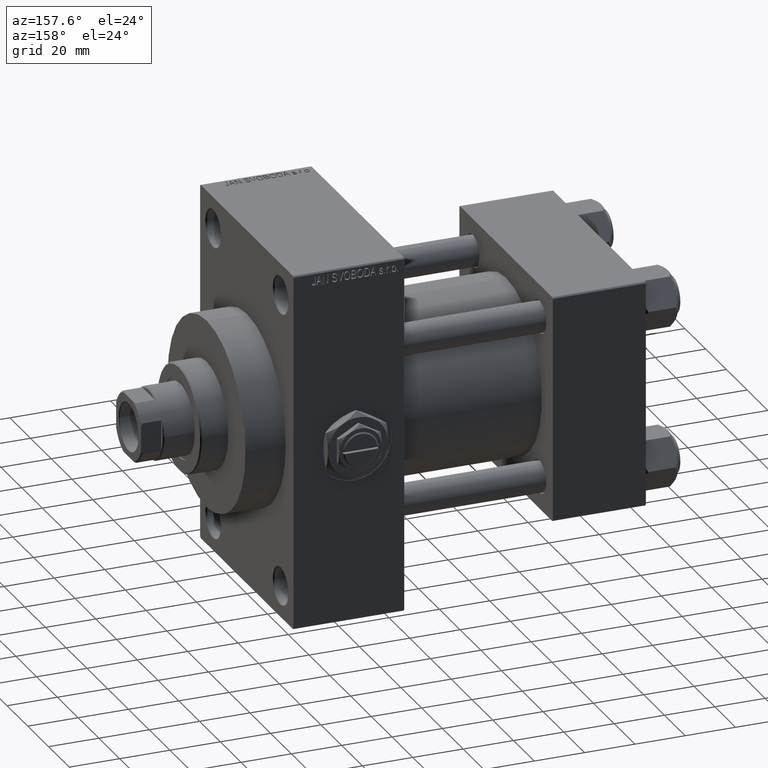
[diagram: clean part render]
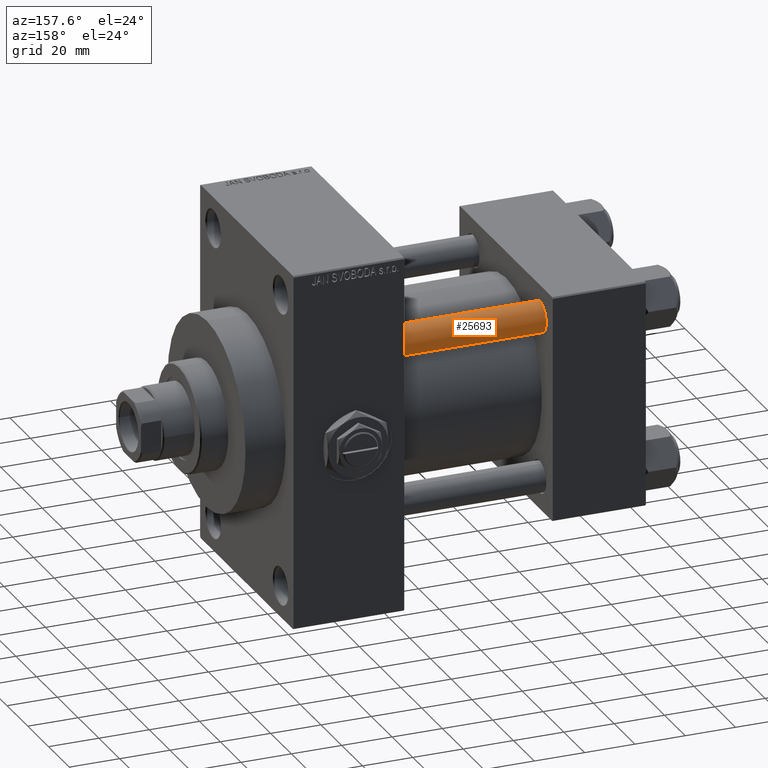
[diagram: same view with one face highlighted and labeled with its STEP entity id]
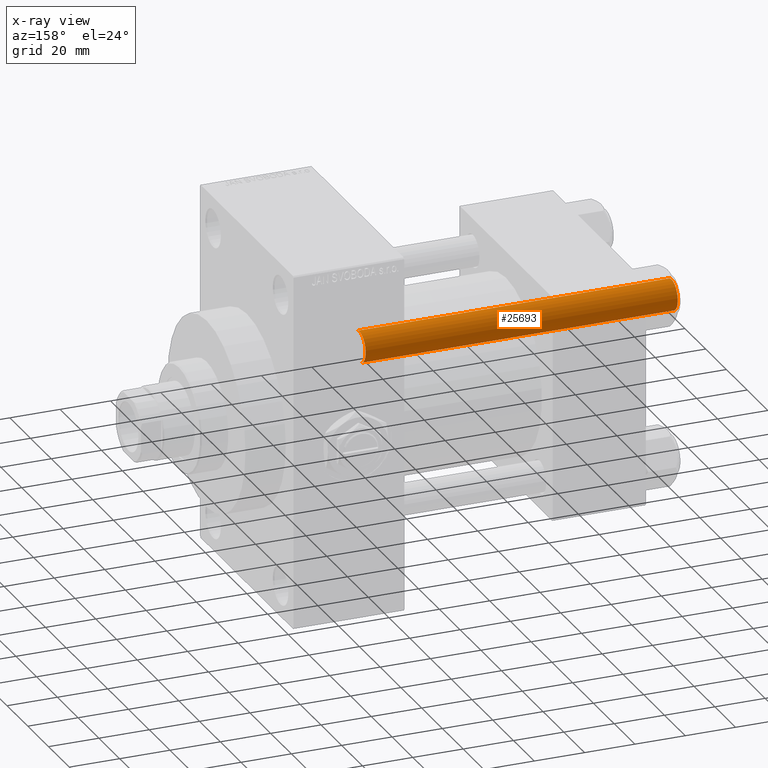
[diagram: x-ray of the same camera — body ghosted, the highlighted face saturated]
A machine part, auxiliary view. The second image highlights one B-rep face of the part: STEP entity #25693.
The next image is the same camera in x-ray: the body ghosted, the highlighted face saturated — about 0% of this face is hidden behind the body in this view.
In plain terms, the highlighted cylindrical surface (edge-blend (fillet) strip) has radius 6 mm, axis along (-1, -0, 0).
Its self-contained STEP definition (entity closure, byte-faithful):
#333 = CARTESIAN_POINT ( 'NONE',  ( 0.000000000000000000, 0.000000000000000000, 125.0000000000000000 ) ) ;
#1249 = VERTEX_POINT ( 'NONE', #16820 ) ;
#2919 = EDGE_CURVE ( 'NONE', #32861, #1249, #44794, .T. ) ;
#7286 = AXIS2_PLACEMENT_3D ( 'NONE', #47069, #21551, #17102 ) ;
#8773 = ORIENTED_EDGE ( 'NONE', *, *, #2919, .F. ) ;
#9768 = CIRCLE ( 'NONE', #36678, 6.000000000000000888 ) ;
#11502 = DIRECTION ( 'NONE',  ( -0.000000000000000000, -0.000000000000000000, -1.000000000000000000 ) ) ;
#12457 = CARTESIAN_POINT ( 'NONE',  ( 6.000000000000000888, 7.347880794884120722E-16, 0.4999999999999865663 ) ) ;
#13547 = EDGE_CURVE ( 'NONE', #45337, #19622, #36318, .T. ) ;
#16002 = ORIENTED_EDGE ( 'NONE', *, *, #20794, .T. ) ;
#16820 = CARTESIAN_POINT ( 'NONE',  ( -6.000000000000000888, 0.000000000000000000, 0.4999999999999865663 ) ) ;
#17102 = DIRECTION ( 'NONE',  ( 1.000000000000000000, 0.000000000000000000, 0.000000000000000000 ) ) ;
#17805 = DIRECTION ( 'NONE',  ( -0.000000000000000000, -0.000000000000000000, -1.000000000000000000 ) ) ;
#18030 = DIRECTION ( 'NONE',  ( -1.000000000000000000, 0.000000000000000000, 0.000000000000000000 ) ) ;
#18785 = CARTESIAN_POINT ( 'NONE',  ( -6.000000000000000888, 0.000000000000000000, 125.0000000000000000 ) ) ;
#19622 = VERTEX_POINT ( 'NONE', #12457 ) ;
#20794 = EDGE_CURVE ( 'NONE', #32861, #45337, #31782, .T. ) ;
#21551 = DIRECTION ( 'NONE',  ( 0.000000000000000000, 0.000000000000000000, -1.000000000000000000 ) ) ;
#22175 = ORIENTED_EDGE ( 'NONE', *, *, #13547, .T. ) ;
#23122 = CYLINDRICAL_SURFACE ( 'NONE', #26473, 6.000000000000000888 ) ;
#24259 = EDGE_CURVE ( 'NONE', #19622, #1249, #9768, .T. ) ;
#24445 = CARTESIAN_POINT ( 'NONE',  ( 6.000000000000000888, 7.347880794884120722E-16, 125.0000000000000000 ) ) ;
#25372 = CARTESIAN_POINT ( 'NONE',  ( 0.000000000000000000, 0.000000000000000000, 0.4999999999999865663 ) ) ;
#25693 = ADVANCED_FACE ( 'NONE', ( #34520 ), #23122, .T. ) ;
#26320 = VECTOR ( 'NONE', #43774, 1000.000000000000000 ) ;
#26473 = AXIS2_PLACEMENT_3D ( 'NONE', #333, #11502, #18030 ) ;
#27637 = VECTOR ( 'NONE', #17805, 1000.000000000000000 ) ;
#28415 = EDGE_LOOP ( 'NONE', ( #16002, #22175, #47922, #8773 ) ) ;
#29858 = CARTESIAN_POINT ( 'NONE',  ( 6.000000000000000888, 7.347880794884120722E-16, 124.5000000000000000 ) ) ;
#31782 = CIRCLE ( 'NONE', #7286, 6.000000000000000888 ) ;
#32861 = VERTEX_POINT ( 'NONE', #46910 ) ;
#34520 = FACE_OUTER_BOUND ( 'NONE', #28415, .T. ) ;
#36318 = LINE ( 'NONE', #24445, #26320 ) ;
#36678 = AXIS2_PLACEMENT_3D ( 'NONE', #25372, #40488, #48903 ) ;
#40488 = DIRECTION ( 'NONE',  ( -0.000000000000000000, -0.000000000000000000, 1.000000000000000000 ) ) ;
#43774 = DIRECTION ( 'NONE',  ( -0.000000000000000000, -0.000000000000000000, -1.000000000000000000 ) ) ;
#44794 = LINE ( 'NONE', #18785, #27637 ) ;
#45337 = VERTEX_POINT ( 'NONE', #29858 ) ;
#46910 = CARTESIAN_POINT ( 'NONE',  ( -6.000000000000000888, 0.000000000000000000, 124.5000000000000000 ) ) ;
#47069 = CARTESIAN_POINT ( 'NONE',  ( 0.000000000000000000, 0.000000000000000000, 124.5000000000000000 ) ) ;
#47922 = ORIENTED_EDGE ( 'NONE', *, *, #24259, .T. ) ;
#48903 = DIRECTION ( 'NONE',  ( 1.000000000000000000, 0.000000000000000000, 0.000000000000000000 ) ) ;